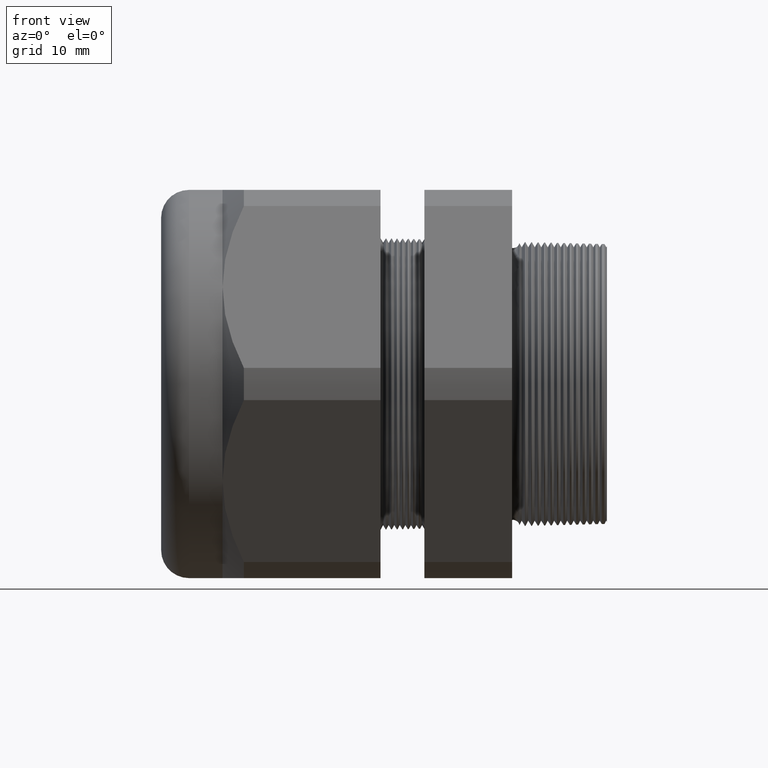
[diagram: clean part render]
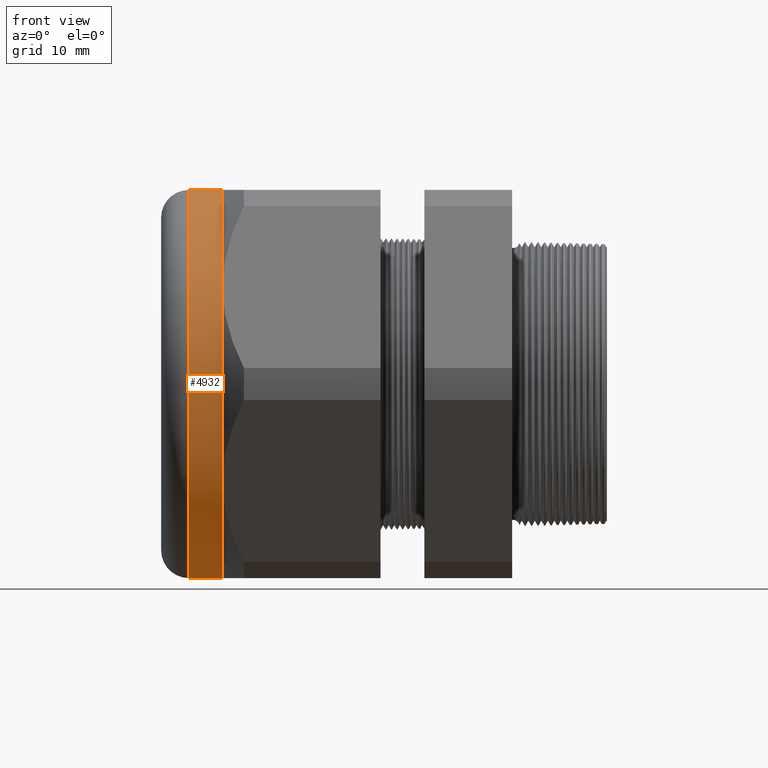
[diagram: same view with one face highlighted and labeled with its STEP entity id]
A machine part, front view. The second image highlights one B-rep face of the part: STEP entity #4932.
In plain terms, the highlighted cylindrical surface (partial cylindrical patch) has radius 26.543 mm, axis along (1, 0, 0).
Its self-contained STEP definition (entity closure, byte-faithful):
#27 = VERTEX_POINT ( 'NONE', #601 ) ;
#28 = VERTEX_POINT ( 'NONE', #600 ) ;
#59 = VERTEX_POINT ( 'NONE', #664 ) ;
#600 = CARTESIAN_POINT ( 'NONE',  ( -2.049999999999999800, 0.0000000000000000000, -1.044999999999999900 ) ) ;
#601 = CARTESIAN_POINT ( 'NONE',  ( -2.049999999999999800, 1.279755905108984100E-016, 1.044999999999999900 ) ) ;
#664 = CARTESIAN_POINT ( 'NONE',  ( -1.869292000000000000, -0.9049965469547386300, 0.5224999999999996300 ) ) ;
#2192 = CARTESIAN_POINT ( 'NONE',  ( -1.869292000000000000, -0.9049965469547380800, -0.5225000000000000800 ) ) ;
#2290 = CARTESIAN_POINT ( 'NONE',  ( -1.869292000000000000, 0.0000000000000000000, -1.044999999999999900 ) ) ;
#2315 = DIRECTION ( 'NONE',  ( 1.000000000000000000, 0.0000000000000000000, 0.0000000000000000000 ) ) ;
#2316 = VECTOR ( 'NONE', #2315, 39.37007874015748100 ) ;
#2317 = CARTESIAN_POINT ( 'NONE',  ( 0.0000000000000000000, 1.279755905108984100E-016, 1.044999999999999900 ) ) ;
#2318 = LINE ( 'NONE', #2317, #2316 ) ;
#2319 = CARTESIAN_POINT ( 'NONE',  ( -1.869292000000000000, 0.0000000000000000000, 1.044999999999999900 ) ) ;
#2335 = DIRECTION ( 'NONE',  ( 1.000000000000000000, 0.0000000000000000000, 0.0000000000000000000 ) ) ;
#2336 = VECTOR ( 'NONE', #2335, 39.37007874015748100 ) ;
#2337 = CARTESIAN_POINT ( 'NONE',  ( 0.0000000000000000000, 0.0000000000000000000, -1.044999999999999900 ) ) ;
#2338 = LINE ( 'NONE', #2337, #2336 ) ;
#2951 = CARTESIAN_POINT ( 'NONE',  ( -1.869292000000000000, 0.0000000000000000000, 0.0000000000000000000 ) ) ;
#2980 = DIRECTION ( 'NONE',  ( 0.0000000000000000000, 0.0000000000000000000, 1.000000000000000000 ) ) ;
#2981 = DIRECTION ( 'NONE',  ( 1.000000000000000000, 0.0000000000000000000, 0.0000000000000000000 ) ) ;
#2982 = CARTESIAN_POINT ( 'NONE',  ( -2.049999999999999800, 0.0000000000000000000, 0.0000000000000000000 ) ) ;
#2983 = AXIS2_PLACEMENT_3D ( 'NONE', #2982, #2981, #2980 ) ;
#2988 = CIRCLE ( 'NONE', #2983, 1.044999999999999900 ) ;
#3006 = DIRECTION ( 'NONE',  ( 0.0000000000000000000, 0.0000000000000000000, -1.000000000000000000 ) ) ;
#3007 = DIRECTION ( 'NONE',  ( 1.000000000000000000, 0.0000000000000000000, 0.0000000000000000000 ) ) ;
#3008 = AXIS2_PLACEMENT_3D ( 'NONE', #2951, #3007, #3006 ) ;
#3009 = CIRCLE ( 'NONE', #3008, 1.044999999999999700 ) ;
#3025 = DIRECTION ( 'NONE',  ( 0.0000000000000000000, 0.0000000000000000000, -1.000000000000000000 ) ) ;
#3026 = DIRECTION ( 'NONE',  ( 1.000000000000000000, 0.0000000000000000000, 0.0000000000000000000 ) ) ;
#3027 = CARTESIAN_POINT ( 'NONE',  ( 0.0000000000000000000, 0.0000000000000000000, 0.0000000000000000000 ) ) ;
#3028 = AXIS2_PLACEMENT_3D ( 'NONE', #3027, #3026, #3025 ) ;
#3030 = CYLINDRICAL_SURFACE ( 'NONE', #3028, 1.044999999999999900 ) ;
#3031 = FACE_OUTER_BOUND ( 'NONE', #4923, .T. ) ;
#3106 = DIRECTION ( 'NONE',  ( 1.000000000000000000, 0.0000000000000000000, 0.0000000000000000000 ) ) ;
#3107 = CARTESIAN_POINT ( 'NONE',  ( -1.869292000000000000, 0.0000000000000000000, 0.0000000000000000000 ) ) ;
#3108 = AXIS2_PLACEMENT_3D ( 'NONE', #3107, #3106, #3169 ) ;
#3109 = CIRCLE ( 'NONE', #3108, 1.044999999999999700 ) ;
#3117 = DIRECTION ( 'NONE',  ( 0.0000000000000000000, 0.0000000000000000000, -1.000000000000000000 ) ) ;
#3118 = DIRECTION ( 'NONE',  ( 1.000000000000000000, 0.0000000000000000000, 0.0000000000000000000 ) ) ;
#3119 = AXIS2_PLACEMENT_3D ( 'NONE', #3125, #3118, #3117 ) ;
#3120 = CIRCLE ( 'NONE', #3119, 1.044999999999999700 ) ;
#3125 = CARTESIAN_POINT ( 'NONE',  ( -1.869292000000000000, 0.0000000000000000000, 0.0000000000000000000 ) ) ;
#3169 = DIRECTION ( 'NONE',  ( 0.0000000000000000000, 0.0000000000000000000, -1.000000000000000000 ) ) ;
#4457 = VERTEX_POINT ( 'NONE', #2192 ) ;
#4523 = VERTEX_POINT ( 'NONE', #2290 ) ;
#4541 = VERTEX_POINT ( 'NONE', #2319 ) ;
#4543 = EDGE_CURVE ( 'NONE', #27, #4541, #2318, .T. ) ;
#4574 = EDGE_CURVE ( 'NONE', #28, #4523, #2338, .T. ) ;
#4908 = EDGE_CURVE ( 'NONE', #4457, #4523, #3009, .T. ) ;
#4910 = ORIENTED_EDGE ( 'NONE', *, *, #4574, .T. ) ;
#4911 = ORIENTED_EDGE ( 'NONE', *, *, #4908, .F. ) ;
#4918 = EDGE_CURVE ( 'NONE', #27, #28, #2988, .T. ) ;
#4919 = ORIENTED_EDGE ( 'NONE', *, *, #4918, .T. ) ;
#4920 = ORIENTED_EDGE ( 'NONE', *, *, #4543, .F. ) ;
#4923 = EDGE_LOOP ( 'NONE', ( #4920, #4919, #4910, #4911, #4996, #4999 ) ) ;
#4932 = ADVANCED_FACE ( 'NONE', ( #3031 ), #3030, .T. ) ;
#4992 = EDGE_CURVE ( 'NONE', #4541, #59, #3120, .T. ) ;
#4995 = EDGE_CURVE ( 'NONE', #59, #4457, #3109, .T. ) ;
#4996 = ORIENTED_EDGE ( 'NONE', *, *, #4995, .F. ) ;
#4999 = ORIENTED_EDGE ( 'NONE', *, *, #4992, .F. ) ;